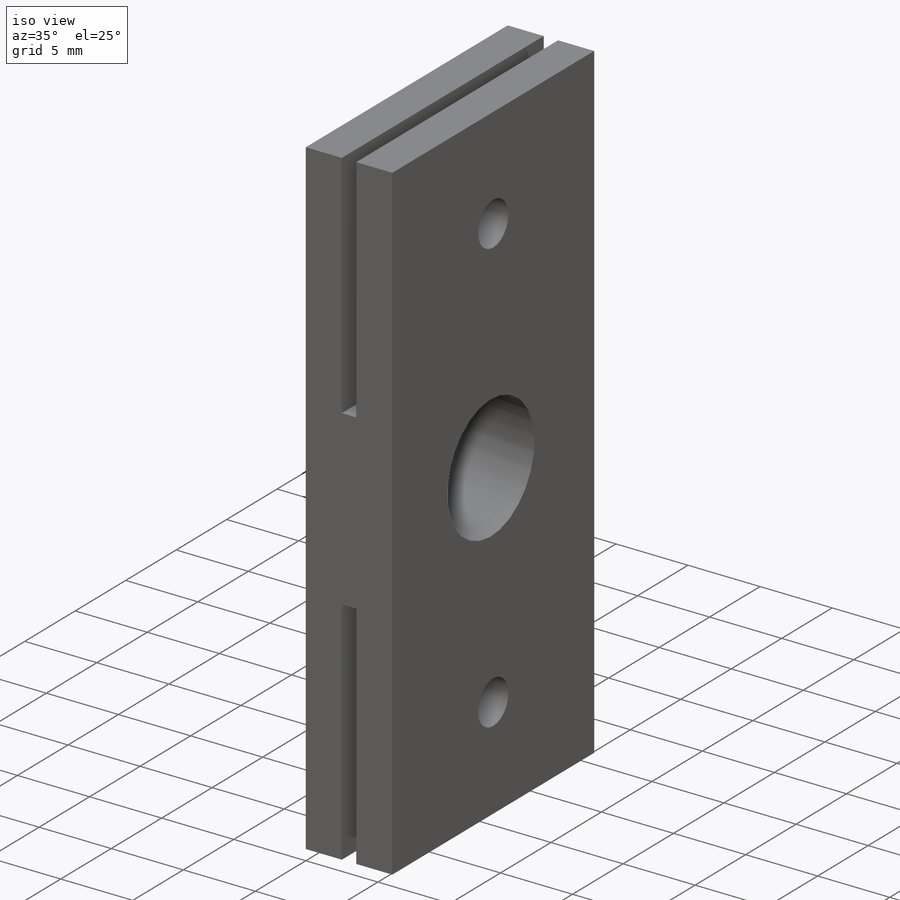
[diagram: iso view]
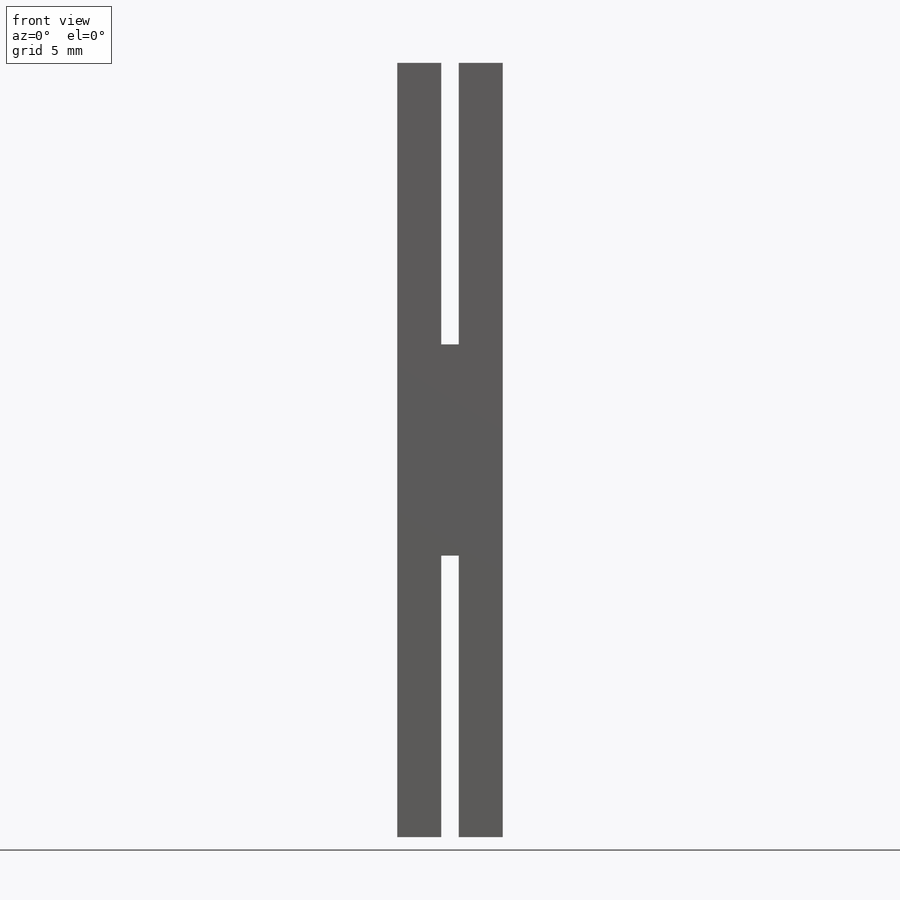
[diagram: front view]
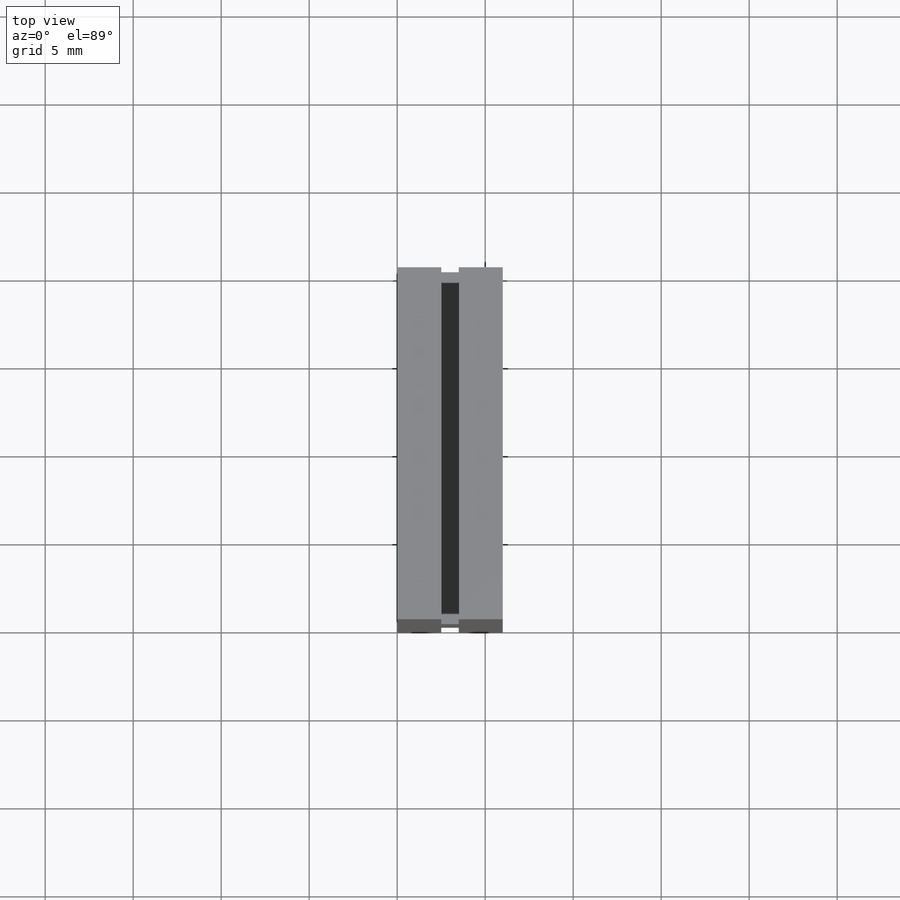
[diagram: top view]
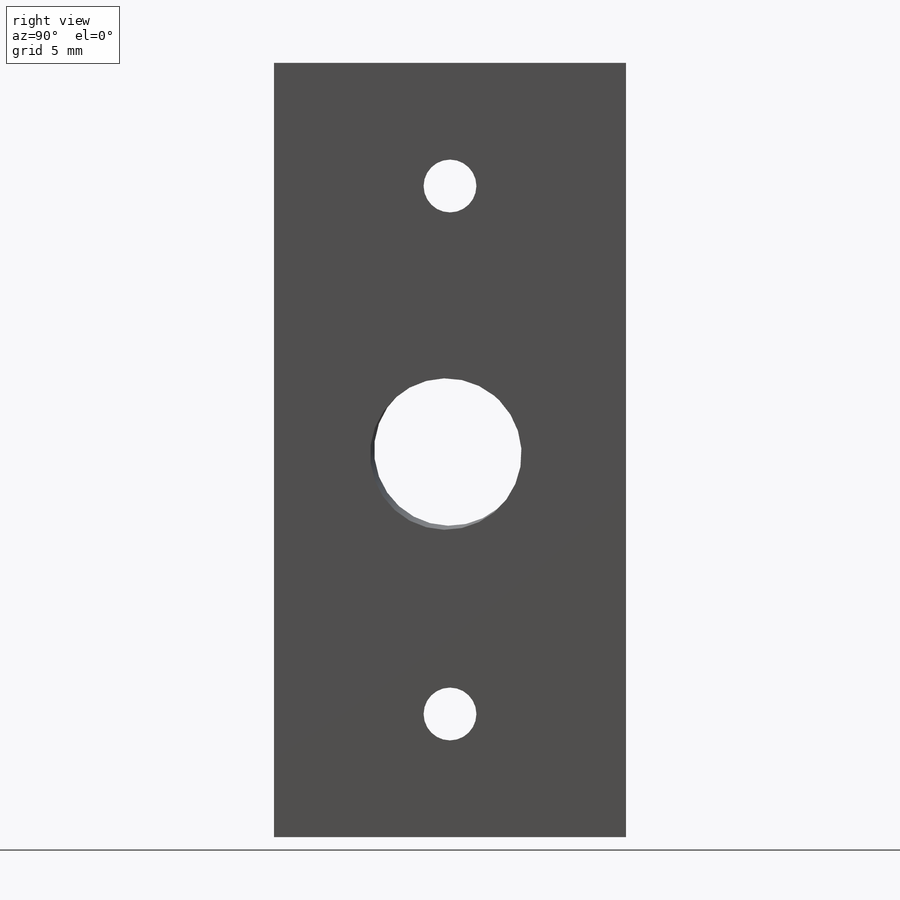
[diagram: right view]
SOLIDWORKS PART (.sldprt)
format: sldprt  version: not decoded by parser v0  size: 332,288 bytes
history: native  units: mm
features: sketch x4, extrude x2, cut_extrude x2, material x1 (+11 scaffold rows collapsed)
feature tree (20):
  scaffold x11  (default folders/planes/origin — collapsed)
  material  "ABS"
  sketch  "Sketch2"  dims[c1.D1=1.0mm c1.D2=8.0mm c1.D3=2.5mm c1.D4=13.0mm c2.D2=6.0mm c2.D4=6.0mm c2.D5=22.0mm c2.D6=2.5mm]
  extrude  "Body"  Depth=20mm
  sketch  "Sketch15"  dims[c1.D1=~44.141472mm c2.D1=~3.301866deg c3.D1=44.1239mm c4.D1=~4.398705deg]
  extrude  "Boss-Extrude6"  [1 undecoded]
  sketch  "Sketch14"  dims[D1=3.0mm D2=3.0mm D3=7.0mm D4=7.0mm]
  cut_extrude  "Mouting Holes"  [1 undecoded]
  sketch  "Sketch17"  dims[D1=8.6mm]
  cut_extrude  "Cut-Extrude1"  [1 undecoded]
decode coverage: 5 of 8 modeling features carry decoded parameters
note: ~ marks probable driven/reference dimensions
note: 3 parameter values undecoded
summary: no parameter record found for 3 features
note: suppression state not decoded; provenance and decode notes live in map.json
